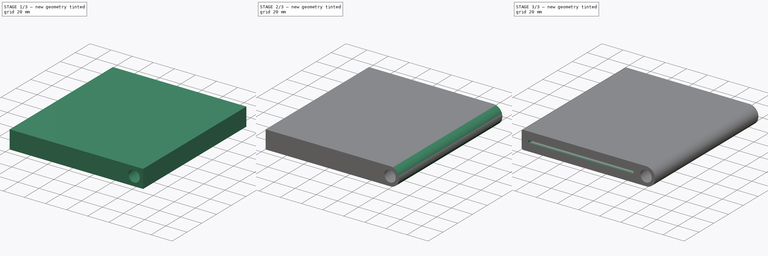
[diagram: build sequence overview — one tinted view per stage of 3, left to right]
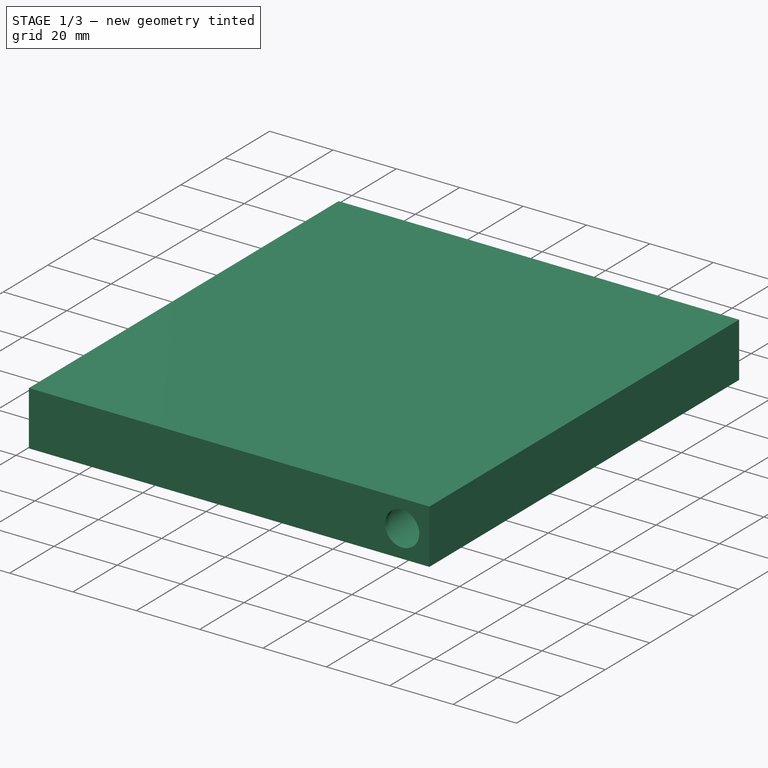
[diagram: stage 1 of 3 — iso view after this stage's code; geometry added in this stage tinted green]
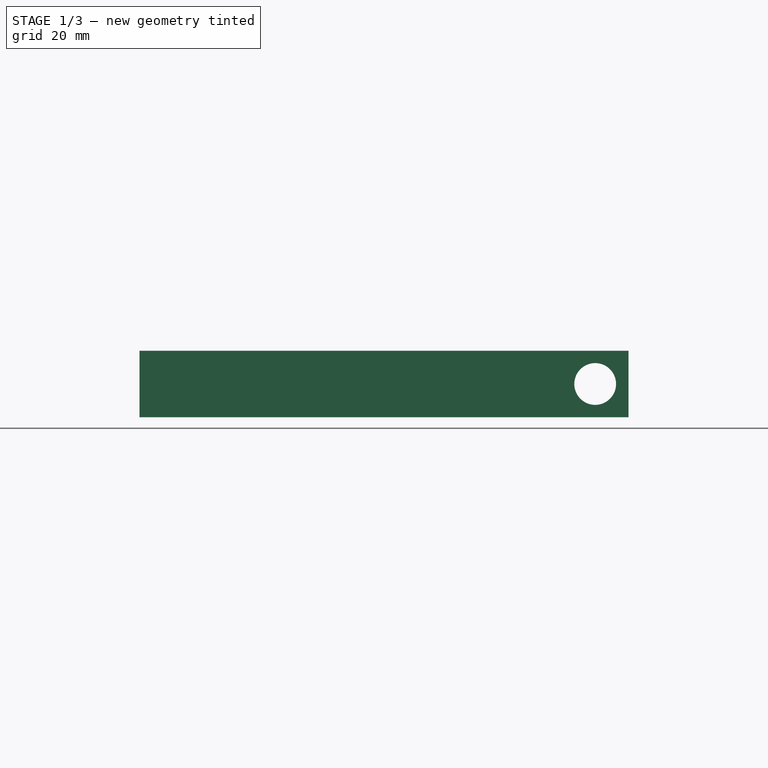
[diagram: stage 1 of 3 — front view after this stage's code; geometry added in this stage tinted green]
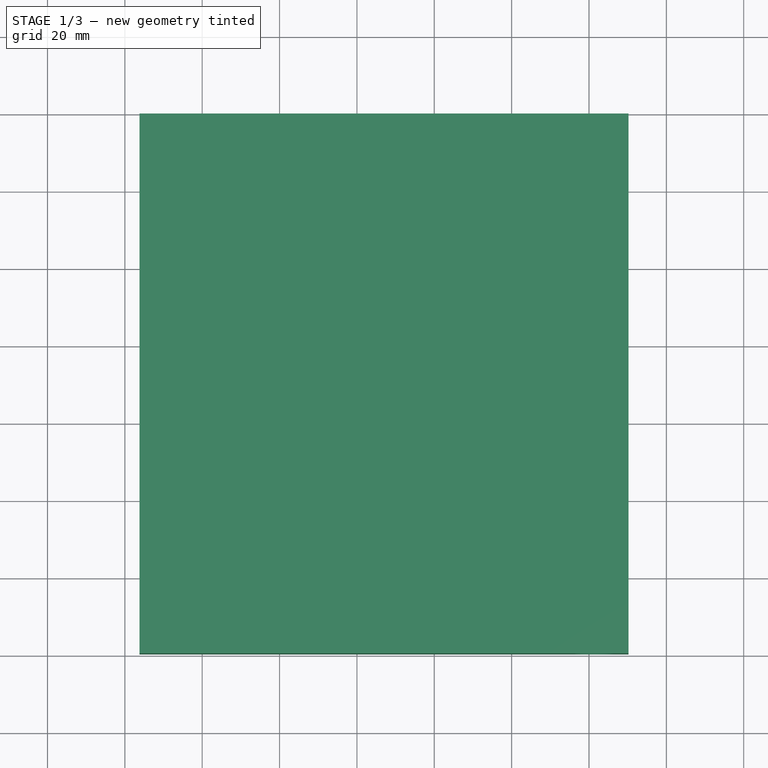
[diagram: stage 1 of 3 — top view after this stage's code; geometry added in this stage tinted green]
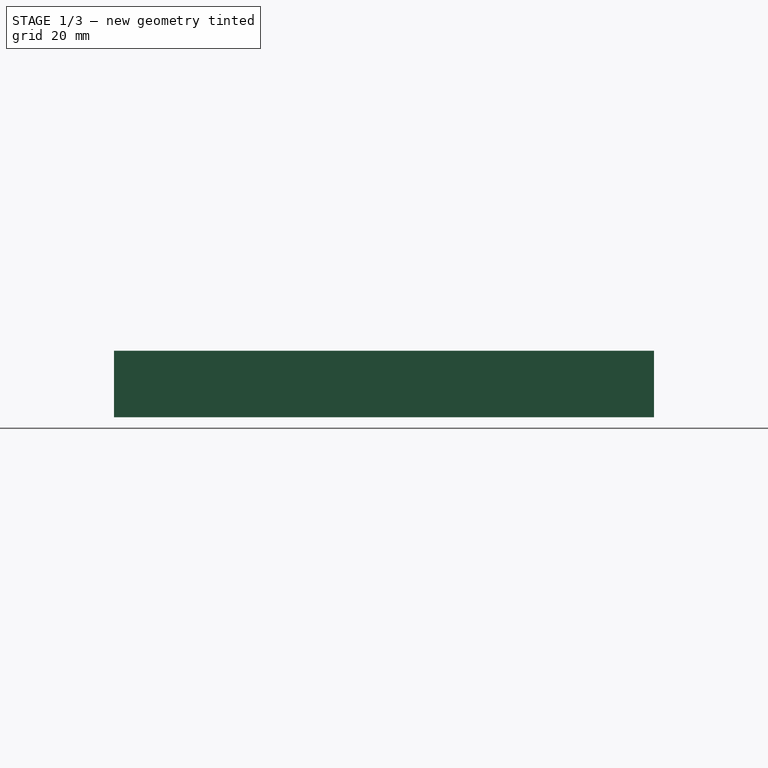
[diagram: stage 1 of 3 — right view after this stage's code; geometry added in this stage tinted green]
FCSTD DOCUMENT  (FreeCAD 0.19R24276 (Git))
Label: notebook_cover
License: All rights reserved
LicenseURL: http://en.wikipedia.org/wiki/All_rights_reserved
objects: TechDraw::DrawProjGroupItem×9, Sketcher::SketchObject×3, PartDesign::Pad×2, PartDesign::Fillet×2, Spreadsheet::Sheet×1, PartDesign::Pocket×1, PartDesign::Body×1, TechDraw::DrawSVGTemplate×1, TechDraw::DrawProjGroup×1, TechDraw::DrawPage×1
note: 14 computed .brp shape members not serialized (recipe doc carries the construction recipe); baked Part::Feature solids carry a one-line shape summary decoded from their .brp

FEATURE [Spreadsheet::Sheet] Spreadsheet
  cells = A1=wall; B1(wall)=1.6; A2=notebook_height; B2(notebook_height)=138; A3=notebook_width; B3(notebook_width)=106; A4=notebook_thickness; B4(notebook_thickness)=8.75; A5=pen_diameter; B5(pen_diameter)=14
FEATURE [Sketcher::SketchObject] Sketch
  FullyConstrained = true
  MapMode = 5
  Placement = pos=(0,0,0) rot=(1,0,0;1.5708rad)
  Support = -> [XZ_Plane]
  expr: Constraints[24] = Spreadsheet.notebook_thickness
  expr: Constraints[22] = Spreadsheet.notebook_width
  expr: Constraints[21] = Spreadsheet.notebook_width + Spreadsheet.pen_diameter + Spreadsheet.wall * 4
  expr: Constraints[20] = Spreadsheet.pen_diameter + Spreadsheet.wall * 2
  expr: Constraints[23] = Spreadsheet.wall * 2
  expr: Constraints[19] = Spreadsheet.pen_diameter / 2
  expr: Constraints[18] = Spreadsheet.pen_diameter / 2 + Spreadsheet.wall
  sketch-geometry (9):
    g0: LineSegment StartX=-53 StartY=4.375 StartZ=0 EndX=53 EndY=4.375 EndZ=0
    g1: LineSegment StartX=53 StartY=4.375 StartZ=0 EndX=53 EndY=-4.375 EndZ=0
    g2: LineSegment StartX=53 StartY=-4.375 StartZ=0 EndX=-53 EndY=-4.375 EndZ=0
    g3: LineSegment StartX=-53 StartY=-4.375 StartZ=0 EndX=-53 EndY=4.375 EndZ=0
    g4: LineSegment StartX=-56.2 StartY=8.6 StartZ=0 EndX=70.2 EndY=8.6 EndZ=0
    g5: LineSegment StartX=70.2 StartY=8.6 StartZ=0 EndX=70.2 EndY=-8.6 EndZ=0
    g6: LineSegment StartX=70.2 StartY=-8.6 StartZ=0 EndX=-56.2 EndY=-8.6 EndZ=0
    g7: LineSegment StartX=-56.2 StartY=-8.6 StartZ=0 EndX=-56.2 EndY=8.6 EndZ=0
    g8: Circle CenterX=61.6 CenterY=0 CenterZ=0 NormalX=0 NormalY=0 NormalZ=1 AngleXU=0 Radius=7
  constraints (25):
    c: Coincident(g0,g1)
    c: Coincident(g1,g2)
    c: Coincident(g2,g3)
    c: Coincident(g3,g0)
    c: Horizontal(g0)
    c: Horizontal(g2)
    c: Vertical(g1)
    c: Vertical(g3)
    c: Coincident(g4,g5)
    c: Coincident(g5,g6)
    c: Coincident(g6,g7)
    c: Coincident(g7,g4)
    c: Horizontal(g4)
    c: Horizontal(g6)
    c: Vertical(g5)
    c: PointOnObject(g8,g-1)
    c: Symmetric(g0,g2,g-1)
    c: Symmetric(g4,g6,g-1)
    c: DistanceX(g0,g8) = 8.6
    c: Radius(g8) = 7
    c: DistanceY(g5,g5) = 17.2
    c: DistanceX(g4,g4) = 126.4
    c: DistanceX(g0,g0) = 106
    c: DistanceX(g6,g2) = 3.2
    c: DistanceY(g3,g3) = 8.75
FEATURE [PartDesign::Pad] Pad
  Direction = (1,1,1)
  Length = 138
  Length2 = 100
  Placement = pos=(0,0,0) rot=(1,0,0;1.5708rad)
  Profile = -> Sketch
  Type = 0
  expr: Length = Spreadsheet.notebook_height
FEATURE [Sketcher::SketchObject] Sketch001
  ExternalGeometry = -> [Pad]
  FullyConstrained = true
  MapMode = 5
  Placement = pos=(0,-138,-3.06e-14) rot=(1,0,0;1.5708rad)
  Support = -> [Pad]
  expr: Constraints[11] = Spreadsheet.pen_diameter / 2 - Spreadsheet.wall
  sketch-geometry (5):
    g0: LineSegment StartX=-56.2 StartY=8.6 StartZ=0 EndX=70.2 EndY=8.6 EndZ=0
    g1: LineSegment StartX=70.2 StartY=8.6 StartZ=0 EndX=70.2 EndY=-8.6 EndZ=0
    g2: LineSegment StartX=70.2 StartY=-8.6 StartZ=0 EndX=-56.2 EndY=-8.6 EndZ=0
    g3: LineSegment StartX=-56.2 StartY=-8.6 StartZ=0 EndX=-56.2 EndY=8.6 EndZ=0
    g4: Circle CenterX=61.6 CenterY=0 CenterZ=0 NormalX=0 NormalY=0 NormalZ=1 AngleXU=0 Radius=5.4
  constraints (12):
    c: Coincident(g0,g1)
    c: Coincident(g1,g2)
    c: Coincident(g2,g3)
    c: Coincident(g3,g0)
    c: Horizontal(g0)
    c: Horizontal(g2)
    c: Vertical(g1)
    c: Vertical(g3)
    c: Coincident(g0,g-4)
    c: Coincident(g1,g-5)
    c: Coincident(g4,g-3)
    c: Radius(g4) = 5.4
FEATURE [PartDesign::Pad] Pad001
  BaseFeature = -> Pad
  Direction = (1,1,1)
  Length = 1.6
  Length2 = 100
  Placement = pos=(0,0,0) rot=(1,0,0;1.5708rad)
  Profile = -> Sketch001
  Refine = true
  Type = 0
  expr: Length = Spreadsheet.wall
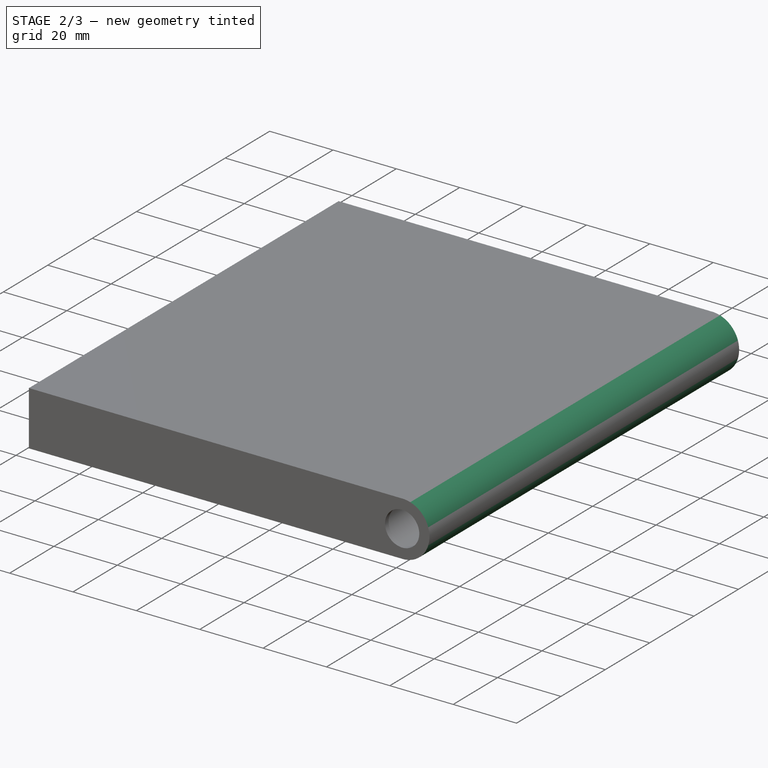
[diagram: stage 2 of 3 — iso view after this stage's code; geometry added in this stage tinted green]
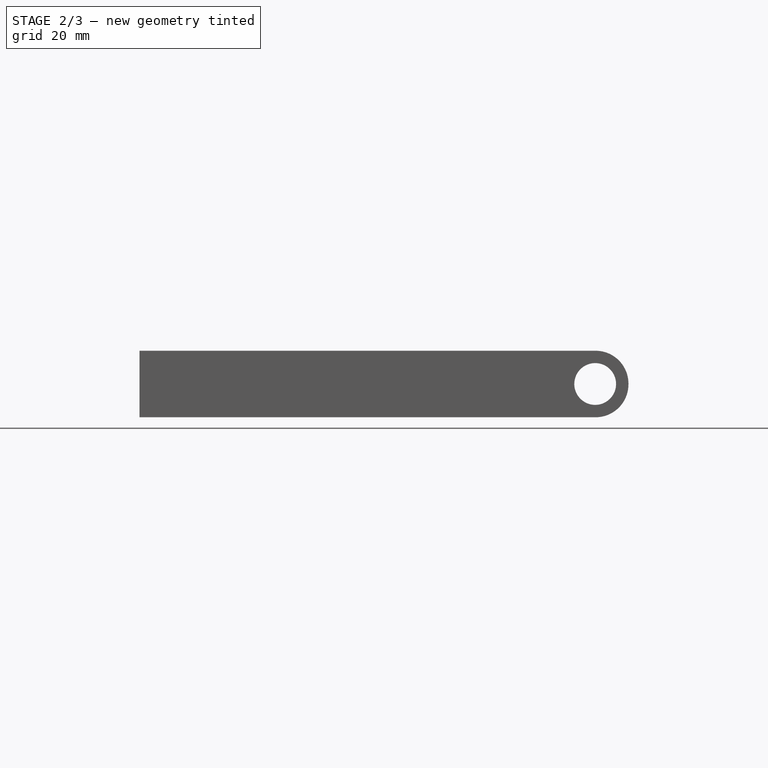
[diagram: stage 2 of 3 — front view after this stage's code; geometry added in this stage tinted green]
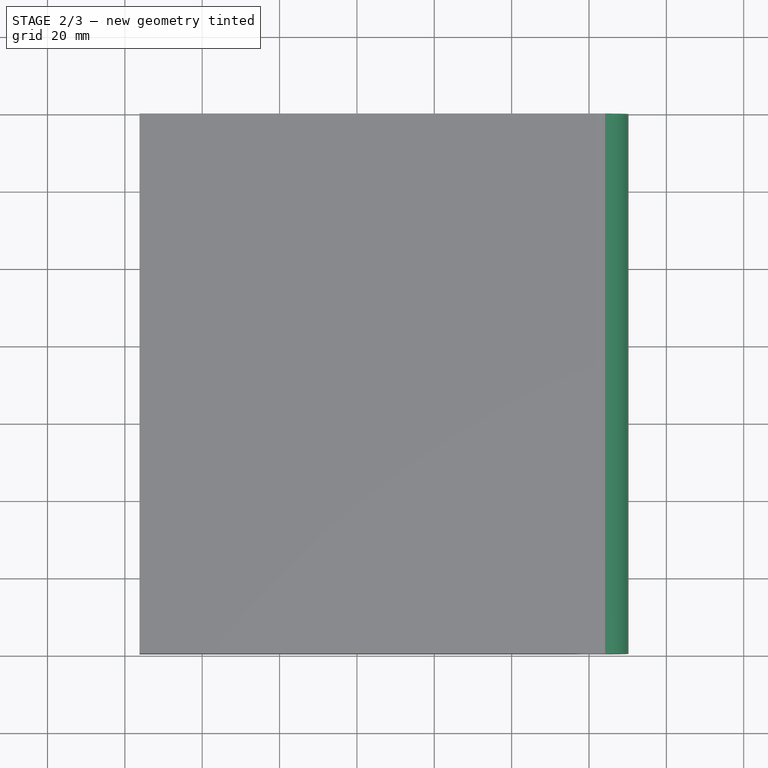
[diagram: stage 2 of 3 — top view after this stage's code; geometry added in this stage tinted green]
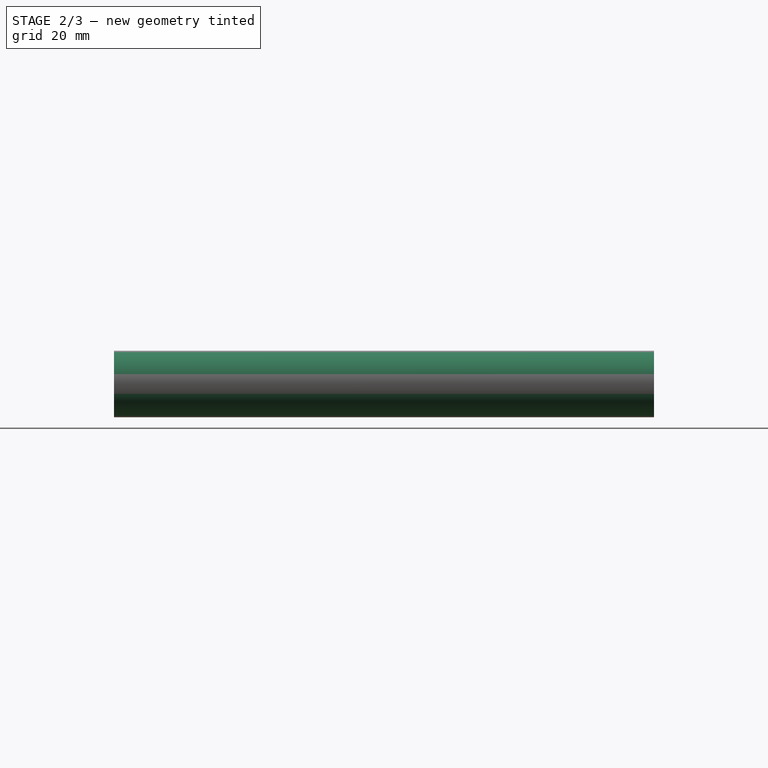
[diagram: stage 2 of 3 — right view after this stage's code; geometry added in this stage tinted green]
FEATURE [PartDesign::Fillet] Fillet
  Base = -> Pad001 [Edge28,Edge30]
  BaseFeature = -> Pad001
  Placement = pos=(0,0,0) rot=(1,0,0;1.5708rad)
  Radius = 8.5
  SupportTransform = false
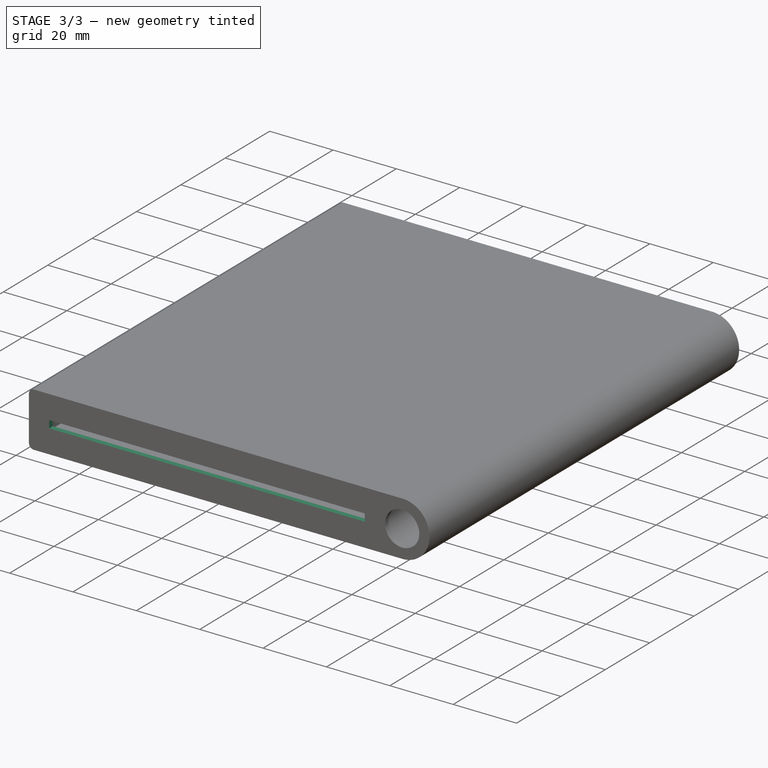
[diagram: stage 3 of 3 — iso view after this stage's code; geometry added in this stage tinted green]
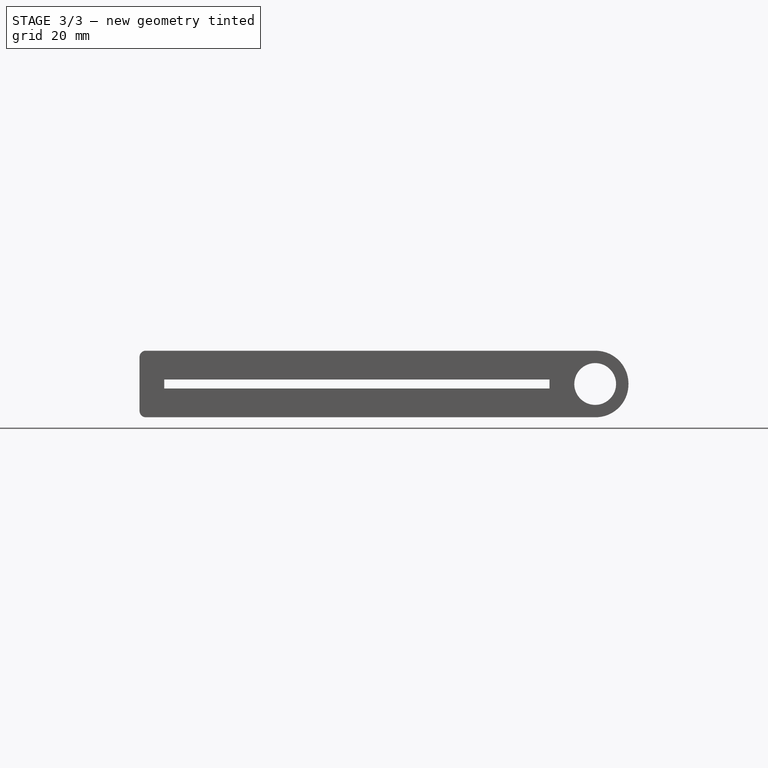
[diagram: stage 3 of 3 — front view after this stage's code; geometry added in this stage tinted green]
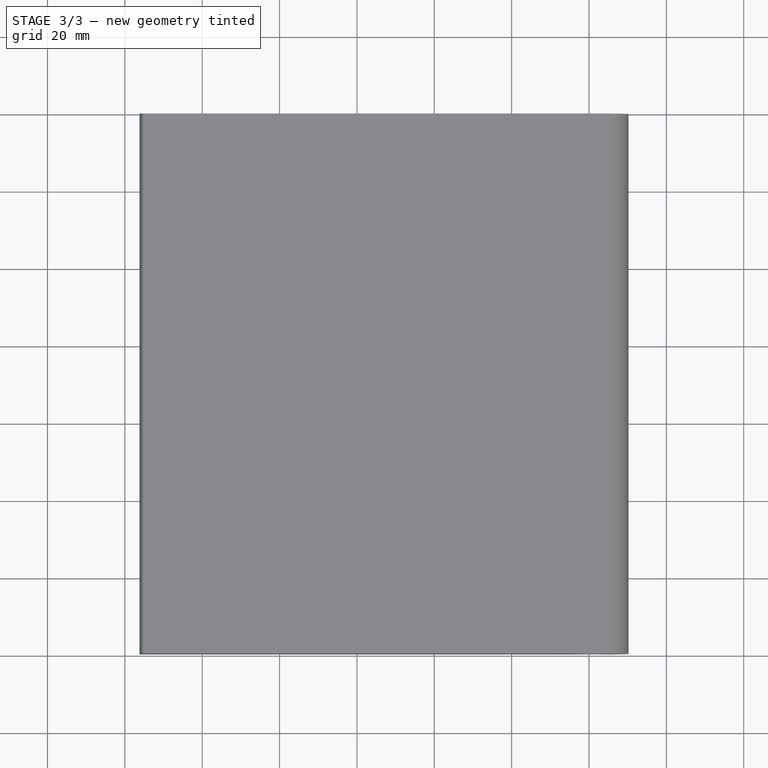
[diagram: stage 3 of 3 — top view after this stage's code; geometry added in this stage tinted green]
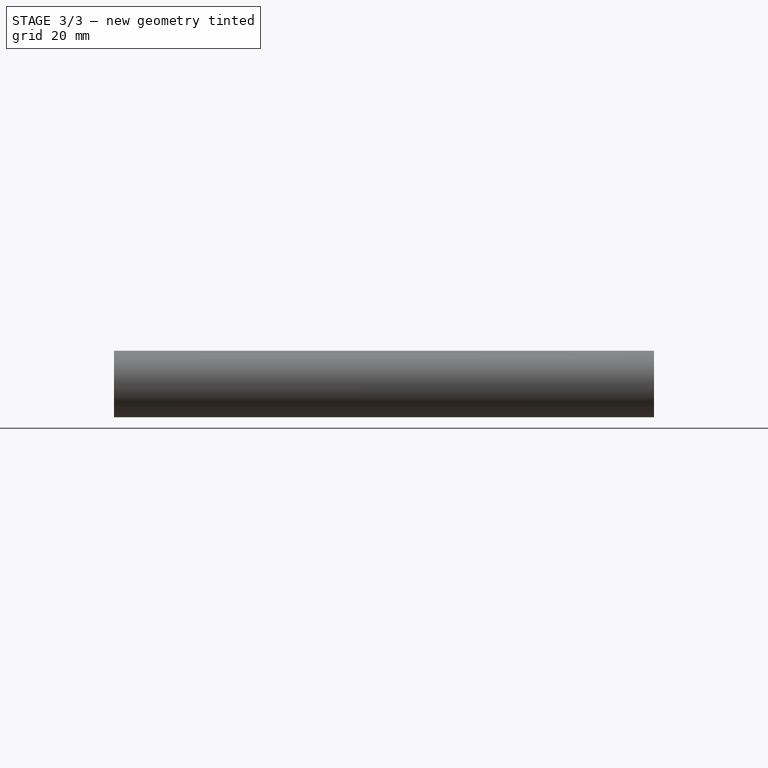
[diagram: stage 3 of 3 — right view after this stage's code; geometry added in this stage tinted green]
FEATURE [PartDesign::Fillet] Fillet001
  Base = -> Fillet [Edge14,Edge17]
  BaseFeature = -> Fillet
  Placement = pos=(0,0,0) rot=(1,0,0;1.5708rad)
  Radius = 1.6
  SupportTransform = false
  expr: Radius = Spreadsheet.wall
FEATURE [Sketcher::SketchObject] Sketch002
  ExternalGeometry = -> [Fillet001]
  FullyConstrained = true
  MapMode = 5
  Placement = pos=(0,-138,0) rot=(-1,0,0;1.5708rad)
  Support = -> [Fillet001]
  expr: Constraints[8] = Spreadsheet.wall * 2
  expr: Constraints[9] = Spreadsheet.wall * 2
  expr: Constraints[10] = Spreadsheet.wall * 2
  expr: Constraints[11] = Spreadsheet.wall * 2
  sketch-geometry (4):
    g0: LineSegment StartX=-49.8 StartY=1.175 StartZ=0 EndX=49.8 EndY=1.175 EndZ=0
    g1: LineSegment StartX=49.8 StartY=1.175 StartZ=0 EndX=49.8 EndY=-1.175 EndZ=0
    g2: LineSegment StartX=49.8 StartY=-1.175 StartZ=0 EndX=-49.8 EndY=-1.175 EndZ=0
    g3: LineSegment StartX=-49.8 StartY=-1.175 StartZ=0 EndX=-49.8 EndY=1.175 EndZ=0
  constraints (12):
    c: Coincident(g0,g1)
    c: Coincident(g1,g2)
    c: Coincident(g2,g3)
    c: Coincident(g3,g0)
    c: Horizontal(g0)
    c: Horizontal(g2)
    c: Vertical(g1)
    c: Vertical(g3)
    c: DistanceY(g0,g-3) = 3.2
    c: DistanceX(g0,g-3) = 3.2
    c: DistanceX(g-4,g2) = 3.2
    c: DistanceY(g-4,g2) = 3.2
FEATURE [PartDesign::Pocket] Pocket
  BaseFeature = -> Fillet001
  Length = 5
  Length2 = 100
  Placement = pos=(0,0,0) rot=(1,0,0;1.5708rad)
  Profile = -> Sketch002
  Type = 0
FEATURE [PartDesign::Body] Body
  Group = -> [Sketch,Pad,Sketch001,Pad001,Fillet,Fillet001,Sketch002,Pocket]
  Origin = -> Origin
  Tip = -> Pocket
FEATURE [TechDraw::DrawSVGTemplate] Template_Pocket
  Height = 210
  Orientation = 1
  Width = 297
FEATURE [TechDraw::DrawProjGroupItem] ProjItem  label="Front"
  CoarseView = false
  Direction = (0,-1,0)
  Focus = 100
  HardHidden = false
  IsoCount = 0
  IsoHidden = false
  IsoVisible = false
  LockPosition = true
  Perspective = false
  Rotation = 0
  RotationVector = (1,0,0)
  Scale = 0.25
  ScaleType = 2
  SeamHidden = false
  SeamVisible = true
  SmoothHidden = false
  SmoothVisible = true
  Source = -> [Pocket]
  Type = 0
  X = 0
  XDirection = (1,0,0)
  Y = 0
FEATURE [TechDraw::DrawProjGroupItem] ProjItem001  label="Right"
  CoarseView = false
  Direction = (1,-1e-16,0)
  Focus = 100
  HardHidden = false
  IsoCount = 0
  IsoHidden = false
  IsoVisible = false
  LockPosition = false
  Perspective = false
  Rotation = 0
  RotationVector = (1,0,0)
  Scale = 0.25
  ScaleType = 2
  SeamHidden = false
  SeamVisible = true
  SmoothHidden = false
  SmoothVisible = true
  Source = -> [Pocket]
  Type = 2
  X = -55.9613
  XDirection = (1e-16,1,0)
  Y = 0
FEATURE [TechDraw::DrawProjGroupItem] ProjItem002  label="Top"
  CoarseView = false
  Direction = (0,0,1)
  Focus = 100
  HardHidden = false
  IsoCount = 0
  IsoHidden = false
  IsoVisible = false
  LockPosition = false
  Perspective = false
  Rotation = 0
  RotationVector = (1,0,0)
  Scale = 0.25
  ScaleType = 2
  SeamHidden = false
  SeamVisible = true
  SmoothHidden = false
  SmoothVisible = true
  Source = -> [Pocket]
  Type = 4
  X = 0
  XDirection = (1,0,0)
  Y = -68.0839
FEATURE [TechDraw::DrawProjGroupItem] ProjItem003  label="Left"
  CoarseView = false
  Direction = (-1,-1e-16,0)
  Focus = 100
  HardHidden = false
  IsoCount = 0
  IsoHidden = false
  IsoVisible = false
  LockPosition = false
  Perspective = false
  Rotation = 0
  RotationVector = (1,0,0)
  Scale = 0.25
  ScaleType = 2
  SeamHidden = false
  SeamVisible = true
  SmoothHidden = false
  SmoothVisible = true
  Source = -> [Pocket]
  Type = 1
  X = 55.9613
  XDirection = (1e-16,-1,0)
  Y = 0
FEATURE [TechDraw::DrawProjGroupItem] ProjItem004  label="Bottom"
  CoarseView = false
  Direction = (0,0,-1)
  Focus = 100
  HardHidden = false
  IsoCount = 0
  IsoHidden = false
  IsoVisible = false
  LockPosition = false
  Perspective = false
  Rotation = 0
  RotationVector = (1,0,0)
  Scale = 0.25
  ScaleType = 2
  SeamHidden = false
  SeamVisible = true
  SmoothHidden = false
  SmoothVisible = true
  Source = -> [Pocket]
  Type = 5
  X = 0
  XDirection = (1,0,0)
  Y = 55.9613
FEATURE [TechDraw::DrawProjGroupItem] ProjItem005  label="FrontBottomLeft"
  CoarseView = false
  Direction = (-0.57735,-0.57735,-0.57735)
  Focus = 100
  HardHidden = false
  IsoCount = 0
  IsoHidden = false
  IsoVisible = false
  LockPosition = false
  Perspective = false
  Rotation = 0
  RotationVector = (1,0,0)
  Scale = 0.25
  ScaleType = 2
  SeamHidden = false
  SeamVisible = true
  SmoothHidden = false
  SmoothVisible = true
  Source = -> [Pocket]
  Type = 8
  X = 62.0226
  XDirection = (0.707107,-0.707107,0)
  Y = 53.4473
FEATURE [TechDraw::DrawProjGroupItem] ProjItem006  label="FrontTopRight"
  CoarseView = false
  Direction = (0.57735,-0.57735,0.57735)
  Focus = 100
  HardHidden = false
  IsoCount = 0
  IsoHidden = false
  IsoVisible = false
  LockPosition = false
  Perspective = false
  Rotation = 0
  RotationVector = (1,0,0)
  Scale = 0.25
  ScaleType = 2
  SeamHidden = false
  SeamVisible = true
  SmoothHidden = false
  SmoothVisible = true
  Source = -> [Pocket]
  Type = 7
  X = -62.0226
  XDirection = (0.707107,0.707107,0)
  Y = -70.5979
FEATURE [TechDraw::DrawProjGroupItem] ProjItem007  label="FrontTopLeft"
  CoarseView = false
  Direction = (-0.57735,-0.57735,0.57735)
  Focus = 100
  HardHidden = false
  IsoCount = 0
  IsoHidden = false
  IsoVisible = false
  LockPosition = false
  Perspective = false
  Rotation = 0
  RotationVector = (1,0,0)
  Scale = 0.25
  ScaleType = 2
  SeamHidden = false
  SeamVisible = true
  SmoothHidden = false
  SmoothVisible = true
  Source = -> [Pocket]
  Type = 6
  X = 62.0226
  XDirection = (0.707107,-0.707107,0)
  Y = -70.5979
FEATURE [TechDraw::DrawProjGroupItem] ProjItem008  label="FrontBottomRight"
  CoarseView = false
  Direction = (0.57735,-0.57735,-0.57735)
  Focus = 100
  HardHidden = false
  IsoCount = 0
  IsoHidden = false
  IsoVisible = false
  LockPosition = false
  Perspective = false
  Rotation = 0
  RotationVector = (1,0,0)
  Scale = 0.25
  ScaleType = 2
  SeamHidden = false
  SeamVisible = true
  SmoothHidden = false
  SmoothVisible = true
  Source = -> [Pocket]
  Type = 9
  X = -62.0226
  XDirection = (0.707107,0.707107,0)
  Y = 53.4473
FEATURE [TechDraw::DrawProjGroup] ProjGroup_Pocket
  Anchor = -> ProjItem
  AutoDistribute = true
  LockPosition = false
  ProjectionType = 0
  Rotation = 0
  Scale = 0.25
  ScaleType = 1
  Source = -> [Pocket]
  Views = -> [ProjItem,ProjItem001,ProjItem002,ProjItem003,ProjItem004,ProjItem005,ProjItem006,ProjItem007,ProjItem008]
  X = 148.5
  Y = 105
  spacingX = 15
  spacingY = 15
FEATURE [TechDraw::DrawPage] Page_Pocket
  KeepUpdated = true
  NextBalloonIndex = 1
  ProjectionType = 0
  Template = -> Template_Pocket
  Views = -> [ProjGroup_Pocket]
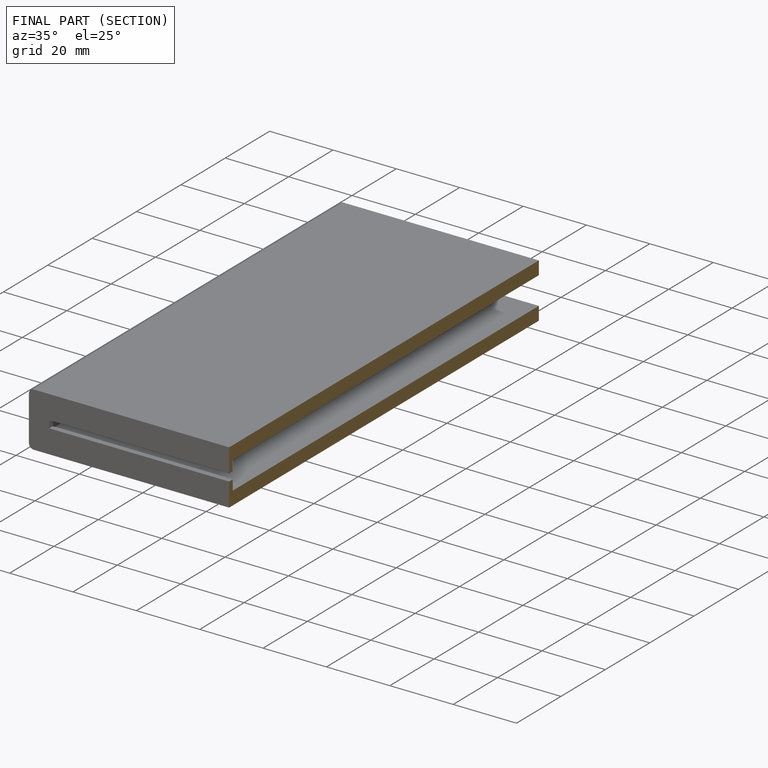
[diagram: finished part — half-section view (interior)]
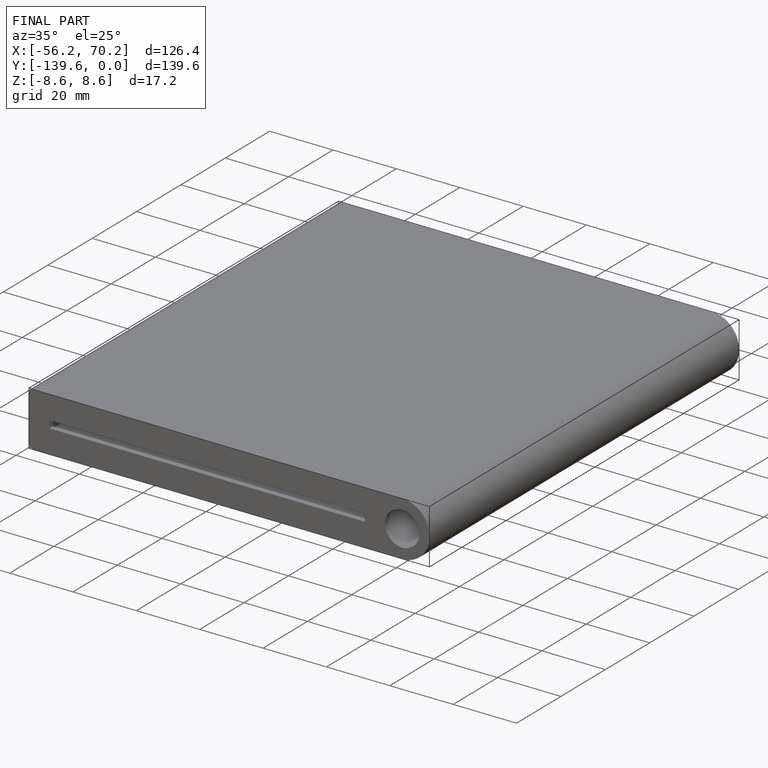
[diagram: finished part — iso view with bounding-box wireframe]
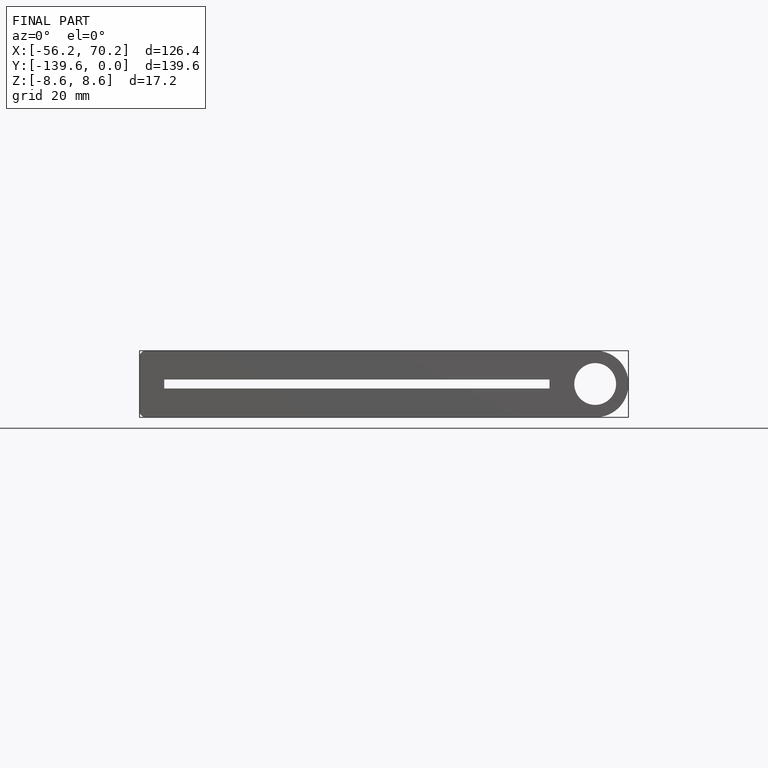
[diagram: finished part — front view with bounding-box wireframe]
